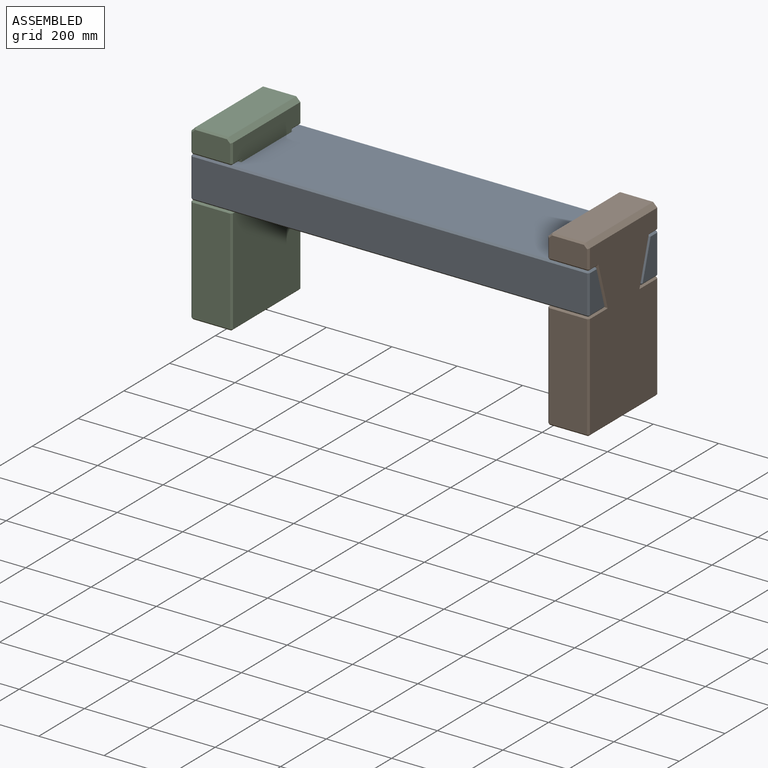
[diagram: assembled view]
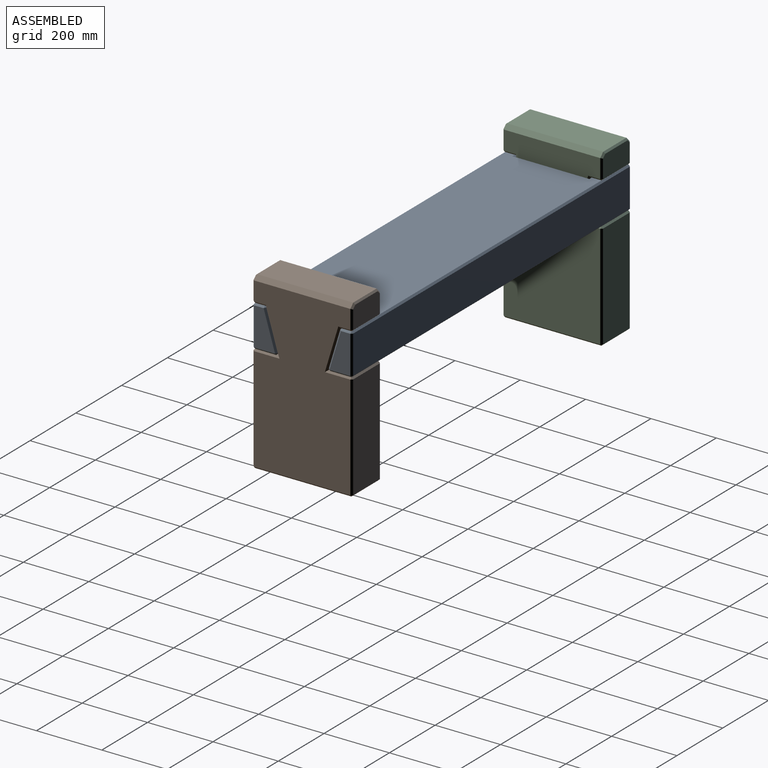
[diagram: assembled view, second angle]
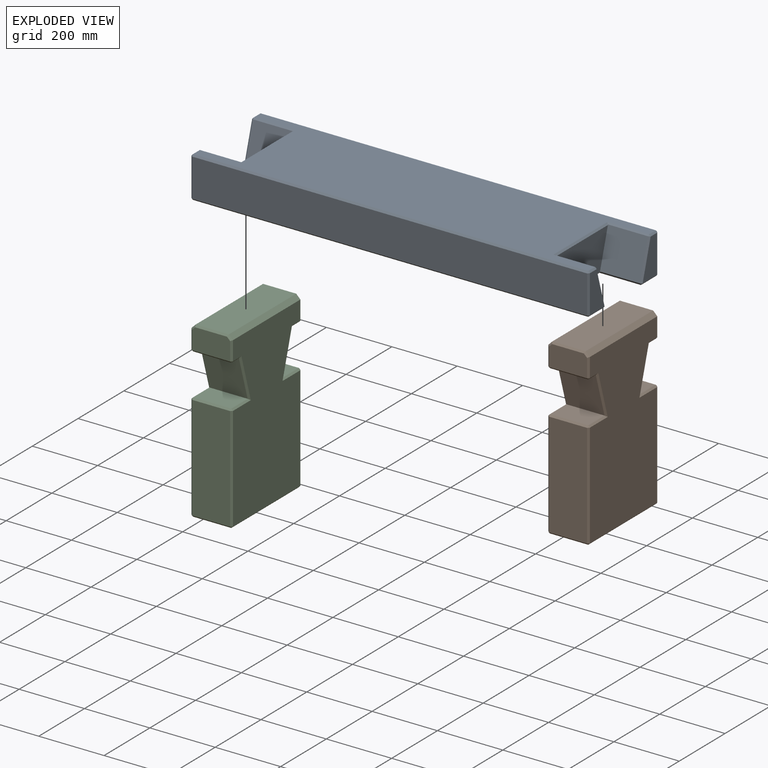
[diagram: exploded view]
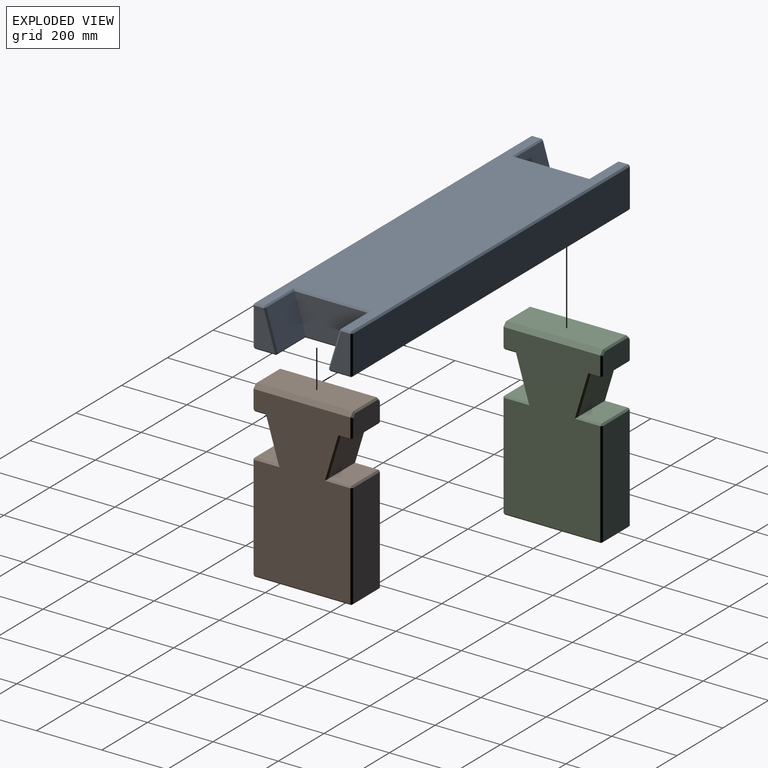
[diagram: exploded view, second angle]
ASSEMBLY  parts=3 mates=2
PART A: 62 faces, bbox 1219.2x304.8x127 mm
  f0: plane 116.84x64.29mm, normal (-1,0,0), area 5464.2mm2, adj f50,f51,f57,f58
  f1: plane 1209.04x294.64mm, normal (0,0,1), area 296247.1mm2, adj f14,f16,f17,f20,f25,f30,f35,f40
  f2: plane 116.84x64.29mm, normal (1,0,0), area 5464.2mm2, adj f29,f30,f38,f39
  f3: plane 116.84x64.29mm, normal (-1,0,0), area 5464.2mm2, adj f35,f36,f47,f48
  f4: plane 1209.04x116.84mm, normal (0,-1,0), area 141264.2mm2, adj f25,f26,f36,f37
  f5: plane 116.84x64.29mm, normal (1,0,0), area 5464.2mm2, adj f17,f18,f26,f27
  f6: plane 1209.04x116.84mm, normal (0,1,0), area 141264.2mm2, adj f39,f40,f49,f50
  f7: plane 1209.04x294.64mm, normal (0,0,-1), area 314053.5mm2, adj f19,f23,f27,f28,f37,f38,f48,f49
  f8: plane 123.38x116.84mm, normal (0,-0.96,0.29), area 14873.5mm2, adj f10,f16,f20,f28,f29
  f9: plane 123.38x116.84mm, normal (0,0.96,0.29), area 14873.5mm2, adj f10,f14,f16,f18,f19
  f10: plane 225.55x116.84mm, normal (1,0,0), area 22260.2mm2, adj f8,f9,f16,f19,f23,f28
  f11: plane 123.38x116.84mm, normal (0,0.96,0.29), area 14873.5mm2, adj f13,f41,f46,f47,f56
  f12: plane 123.38x116.84mm, normal (0,-0.96,0.29), area 14873.5mm2, adj f13,f46,f52,f58,f61
  f13: plane 225.55x116.84mm, normal (-1,0,0), area 22260.2mm2, adj f11,f12,f46,f56,f59,f61
  f14: plane 127x4.87mm, normal (0,0.6,0.8), area 759.3mm2, adj f1,f9,f15,f16
  f15: plane 5.08x5.08mm, normal (0.63,0.47,0.63), area 19.7mm2, adj f14,f17,f18
  f16: plane 236.16x5.08mm, normal (0.71,0,0.71), area 1650.7mm2, adj f1,f8,f9,f10,f14,f20
  f17: plane 29.24x5.08mm, normal (0.71,0,0.71), area 210.1mm2, adj f1,f5,f15,f21
  f18: plane 118.3x39.92mm, normal (0.71,0.68,0.2), area 876.4mm2, adj f5,f9,f15,f22
  f19: plane 127x6.54mm, normal (0,0.8,-0.6), area 1009.9mm2, adj f7,f9,f10,f22,f23
  f20: plane 127x4.87mm, normal (0,-0.6,0.8), area 759.3mm2, adj f1,f8,f16,f24
  f21: plane 5.08x5.08mm, normal (0.58,-0.58,0.58), area 22.3mm2, adj f17,f25,f26
  f22: plane 6.54x5.08mm, normal (0.51,0.69,-0.51), area 24.1mm2, adj f18,f19,f27
  f23: plane 166.06x5.08mm, normal (0.71,0,-0.71), area 1165.8mm2, adj f7,f10,f19,f28
  f24: plane 5.08x5.08mm, normal (0.63,-0.47,0.63), area 19.7mm2, adj f20,f29,f30
  f25: plane 1209.04x5.08mm, normal (0,-0.71,0.71), area 8686mm2, adj f1,f4,f21,f31
  f26: plane 116.84x5.08mm, normal (0.71,-0.71,0), area 839.4mm2, adj f4,f5,f21,f32
  f27: plane 64.29x5.08mm, normal (0.71,0,-0.71), area 461.9mm2, adj f5,f7,f22,f32
  f28: plane 127x6.54mm, normal (0,-0.8,-0.6), area 1009.9mm2, adj f7,f8,f10,f23,f33
  f29: plane 118.3x39.92mm, normal (0.71,-0.68,0.2), area 876.4mm2, adj f2,f8,f24,f33
  f30: plane 29.24x5.08mm, normal (0.71,0,0.71), area 210.1mm2, adj f1,f2,f24,f34
  f31: plane 5.08x5.08mm, normal (-0.58,-0.58,0.58), area 22.3mm2, adj f25,f35,f36
  f32: plane 5.08x5.08mm, normal (0.58,-0.58,-0.58), area 22.3mm2, adj f26,f27,f37
  f33: plane 6.54x5.08mm, normal (0.51,-0.69,-0.51), area 24.1mm2, adj f28,f29,f38
  f34: plane 5.08x5.08mm, normal (0.58,0.58,0.58), area 22.3mm2, adj f30,f39,f40
  f35: plane 29.24x5.08mm, normal (-0.71,0,0.71), area 210.1mm2, adj f1,f3,f31,f42
  f36: plane 116.84x5.08mm, normal (-0.71,-0.71,0), area 839.4mm2, adj f3,f4,f31,f43
  f37: plane 1209.04x5.08mm, normal (0,-0.71,-0.71), area 8686mm2, adj f4,f7,f32,f43
  f38: plane 64.29x5.08mm, normal (0.71,0,-0.71), area 461.9mm2, adj f2,f7,f33,f44
  f39: plane 116.84x5.08mm, normal (0.71,0.71,0), area 839.4mm2, adj f2,f6,f34,f44
  f40: plane 1209.04x5.08mm, normal (0,0.71,0.71), area 8686mm2, adj f1,f6,f34,f45
  f41: plane 127x4.87mm, normal (0,0.6,0.8), area 759.3mm2, adj f1,f11,f42,f46
  f42: plane 5.08x5.08mm, normal (-0.63,0.47,0.63), area 19.7mm2, adj f35,f41,f47
  f43: plane 5.08x5.08mm, normal (-0.58,-0.58,-0.58), area 22.3mm2, adj f36,f37,f48
  f44: plane 5.08x5.08mm, normal (0.58,0.58,-0.58), area 22.3mm2, adj f38,f39,f49
  f45: plane 5.08x5.08mm, normal (-0.58,0.58,0.58), area 22.3mm2, adj f40,f50,f51
  f46: plane 236.16x5.08mm, normal (-0.71,0,0.71), area 1650.7mm2, adj f1,f11,f12,f13,f41,f52
  f47: plane 118.3x39.92mm, normal (-0.71,0.68,0.2), area 876.4mm2, adj f3,f11,f42,f53
  f48: plane 64.29x5.08mm, normal (-0.71,0,-0.71), area 461.9mm2, adj f3,f7,f43,f53
  f49: plane 1209.04x5.08mm, normal (0,0.71,-0.71), area 8686mm2, adj f6,f7,f44,f54
  f50: plane 116.84x5.08mm, normal (-0.71,0.71,0), area 839.4mm2, adj f0,f6,f45,f54
  f51: plane 29.24x5.08mm, normal (-0.71,0,0.71), area 210.1mm2, adj f0,f1,f45,f55
  f52: plane 127x4.87mm, normal (0,-0.6,0.8), area 759.3mm2, adj f1,f12,f46,f55
  f53: plane 6.54x5.08mm, normal (-0.51,0.69,-0.51), area 24.1mm2, adj f47,f48,f56
  f54: plane 5.08x5.08mm, normal (-0.58,0.58,-0.58), area 22.3mm2, adj f49,f50,f57
  f55: plane 5.08x5.08mm, normal (-0.63,-0.47,0.63), area 19.7mm2, adj f51,f52,f58
  f56: plane 127x6.54mm, normal (0,0.8,-0.6), area 1009.9mm2, adj f7,f11,f13,f53,f59
  f57: plane 64.29x5.08mm, normal (-0.71,0,-0.71), area 461.9mm2, adj f0,f7,f54,f60
  f58: plane 118.3x39.92mm, normal (-0.71,-0.68,0.2), area 876.4mm2, adj f0,f12,f55,f60
  f59: plane 166.06x5.08mm, normal (-0.71,0,-0.71), area 1165.8mm2, adj f7,f13,f56,f61
  f60: plane 6.54x5.08mm, normal (-0.51,-0.69,-0.51), area 24.1mm2, adj f57,f58,f61
  f61: plane 127x6.54mm, normal (0,-0.8,-0.6), area 1009.9mm2, adj f7,f12,f13,f59,f60
PART B: 62 faces, bbox 127x304.8x533.4 mm
  f0: plane 320.04x116.84mm, normal (0,-1,0), area 37393.5mm2, adj f39,f40,f47,f48
  f1: plane 320.04x116.84mm, normal (0,1,0), area 37393.5mm2, adj f50,f55,f58,f61
  f2: plane 515.62x294.64mm, normal (1,0,0), area 136183.5mm2, adj f15,f18,f23,f26,f27,f30,f35,f40
  f3: plane 515.62x294.64mm, normal (-1,0,0), area 136183.5mm2, adj f14,f21,f29,f33,f37,f38,f46,f47
  f4: plane 116.84x66.04mm, normal (0,-1,0), area 7621.6mm2, adj f16,f17,f18,f19,f21,f22
  f5: plane 294.64x116.84mm, normal (0,0,-1), area 34425.7mm2, adj f48,f49,f57,f58
  f6: plane 116.84x66.04mm, normal (0,1,0), area 7621.6mm2, adj f24,f27,f28,f32,f36,f37
  f7: plane 294.64x101.6mm, normal (0,0,1), area 29935.4mm2, adj f14,f15,f17,f28
  f8: plane 116.84x71.12mm, normal (0,0,1), area 8309.7mm2, adj f10,f45,f55,f56
  f9: plane 116.84x33.02mm, normal (0,0,-1), area 3858.1mm2, adj f10,f35,f36,f46
  f10: plane 127x116.84mm, normal (0,0.96,-0.29), area 15492mm2, adj f8,f9,f41,f52
  f11: plane 127x116.84mm, normal (0,-0.96,-0.29), area 15492mm2, adj f12,f13,f26,f33
  f12: plane 116.84x71.12mm, normal (0,0,1), area 8309.7mm2, adj f11,f30,f38,f39
  f13: plane 116.84x33.02mm, normal (0,0,-1), area 3858.1mm2, adj f11,f22,f23,f29
  f14: plane 294.64x12.7mm, normal (-0.71,0,0.71), area 5291.9mm2, adj f3,f7,f19,f32
  f15: plane 294.64x12.7mm, normal (0.71,0,0.71), area 5291.9mm2, adj f2,f7,f16,f24
  f16: plane 14.8x14.8mm, normal (0.5,-0.71,0.5), area 113.9mm2, adj f4,f15,f17,f18
  f17: plane 101.6x5.08mm, normal (0,-0.71,0.71), area 714.8mm2, adj f4,f7,f16,f19
  f18: plane 58.42x5.08mm, normal (0.71,-0.71,0), area 412.1mm2, adj f2,f4,f16,f20
  f19: plane 14.8x14.8mm, normal (-0.5,-0.71,0.5), area 113.9mm2, adj f4,f14,f17,f21
  f20: plane 5.08x5.08mm, normal (0.58,-0.58,-0.58), area 22.3mm2, adj f18,f22,f23
  f21: plane 58.42x5.08mm, normal (-0.71,-0.71,0), area 412.1mm2, adj f3,f4,f19,f25
  f22: plane 116.84x5.08mm, normal (0,-0.71,-0.71), area 839.4mm2, adj f4,f13,f20,f25
  f23: plane 36.8x5.08mm, normal (0.71,0,-0.71), area 250.8mm2, adj f2,f13,f20,f26
  f24: plane 14.8x14.8mm, normal (0.5,0.71,0.5), area 113.9mm2, adj f6,f15,f27,f28
  f25: plane 5.08x5.08mm, normal (-0.58,-0.58,-0.58), area 22.3mm2, adj f21,f22,f29
  f26: plane 137.16x44.93mm, normal (0.71,-0.68,-0.2), area 990.7mm2, adj f2,f11,f23,f30
  f27: plane 58.42x5.08mm, normal (0.71,0.71,0), area 412.1mm2, adj f2,f6,f24,f31
  f28: plane 101.6x5.08mm, normal (0,0.71,0.71), area 714.8mm2, adj f6,f7,f24,f32
  f29: plane 36.8x5.08mm, normal (-0.71,0,-0.71), area 250.8mm2, adj f3,f13,f25,f33
  f30: plane 77.95x5.08mm, normal (0.71,0,0.71), area 535.5mm2, adj f2,f12,f26,f34
  f31: plane 5.08x5.08mm, normal (0.58,0.58,-0.58), area 22.3mm2, adj f27,f35,f36
  f32: plane 14.8x14.8mm, normal (-0.5,0.71,0.5), area 113.9mm2, adj f6,f14,f28,f37
  f33: plane 137.16x44.93mm, normal (-0.71,-0.68,-0.2), area 990.7mm2, adj f3,f11,f29,f38
  f34: plane 5.08x5.08mm, normal (0.58,-0.58,0.58), area 22.3mm2, adj f30,f39,f40
  f35: plane 36.8x5.08mm, normal (0.71,0,-0.71), area 250.8mm2, adj f2,f9,f31,f41
  f36: plane 116.84x5.08mm, normal (0,0.71,-0.71), area 839.4mm2, adj f6,f9,f31,f42
  f37: plane 58.42x5.08mm, normal (-0.71,0.71,0), area 412.1mm2, adj f3,f6,f32,f42
  f38: plane 77.95x5.08mm, normal (-0.71,0,0.71), area 535.5mm2, adj f3,f12,f33,f43
  f39: plane 116.84x5.08mm, normal (0,-0.71,0.71), area 839.4mm2, adj f0,f12,f34,f43
  f40: plane 320.04x5.08mm, normal (0.71,-0.71,0), area 2299.2mm2, adj f0,f2,f34,f44
  f41: plane 137.16x44.93mm, normal (0.71,0.68,-0.2), area 990.7mm2, adj f2,f10,f35,f45
  f42: plane 5.08x5.08mm, normal (-0.58,0.58,-0.58), area 22.3mm2, adj f36,f37,f46
  f43: plane 5.08x5.08mm, normal (-0.58,-0.58,0.58), area 22.3mm2, adj f38,f39,f47
  f44: plane 5.08x5.08mm, normal (0.58,-0.58,-0.58), area 22.3mm2, adj f40,f48,f49
  f45: plane 77.95x5.08mm, normal (0.71,0,0.71), area 535.5mm2, adj f2,f8,f41,f51
  f46: plane 36.8x5.08mm, normal (-0.71,0,-0.71), area 250.8mm2, adj f3,f9,f42,f52
  f47: plane 320.04x5.08mm, normal (-0.71,-0.71,0), area 2299.2mm2, adj f0,f3,f43,f53
  f48: plane 116.84x5.08mm, normal (0,-0.71,-0.71), area 839.4mm2, adj f0,f5,f44,f53
  f49: plane 294.64x5.08mm, normal (0.71,0,-0.71), area 2116.8mm2, adj f2,f5,f44,f54
  f50: plane 320.04x5.08mm, normal (0.71,0.71,0), area 2299.2mm2, adj f1,f2,f51,f54
  f51: plane 5.08x5.08mm, normal (0.58,0.58,0.58), area 22.3mm2, adj f45,f50,f55
  f52: plane 137.16x44.93mm, normal (-0.71,0.68,-0.2), area 990.7mm2, adj f3,f10,f46,f56
  f53: plane 5.08x5.08mm, normal (-0.58,-0.58,-0.58), area 22.3mm2, adj f47,f48,f57
  f54: plane 5.08x5.08mm, normal (0.58,0.58,-0.58), area 22.3mm2, adj f49,f50,f58
  f55: plane 116.84x5.08mm, normal (0,0.71,0.71), area 839.4mm2, adj f1,f8,f51,f59
  f56: plane 77.95x5.08mm, normal (-0.71,0,0.71), area 535.5mm2, adj f3,f8,f52,f59
  f57: plane 294.64x5.08mm, normal (-0.71,0,-0.71), area 2116.8mm2, adj f3,f5,f53,f60
  f58: plane 116.84x5.08mm, normal (0,0.71,-0.71), area 839.4mm2, adj f1,f5,f54,f60
  f59: plane 5.08x5.08mm, normal (-0.58,0.58,0.58), area 22.3mm2, adj f55,f56,f61
  f60: plane 5.08x5.08mm, normal (-0.58,0.58,-0.58), area 22.3mm2, adj f57,f58,f61
  f61: plane 320.04x5.08mm, normal (-0.71,0.71,0), area 2299.2mm2, adj f1,f3,f59,f60
PART C: same geometry as B
PLACE A at identity
PLACE B t=(546.1,-0.07,-126.75)mm
PLACE C t=(-546.1,-0.07,-126.75)mm
MATE fastened C.f11 <-> A.f11  axis (0,-0.96,-0.29) through (-546.1,-95.32,0.25)mm
MATE fastened B.f11 <-> A.f9  axis (0,-0.96,-0.29) through (546.1,-95.32,0.25)mm
